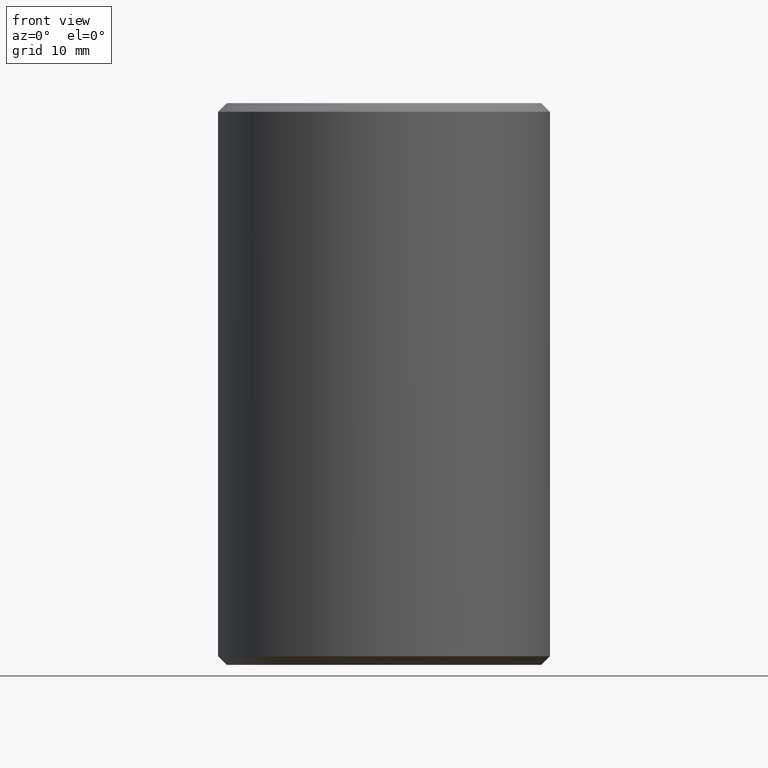
[diagram: clean part render]
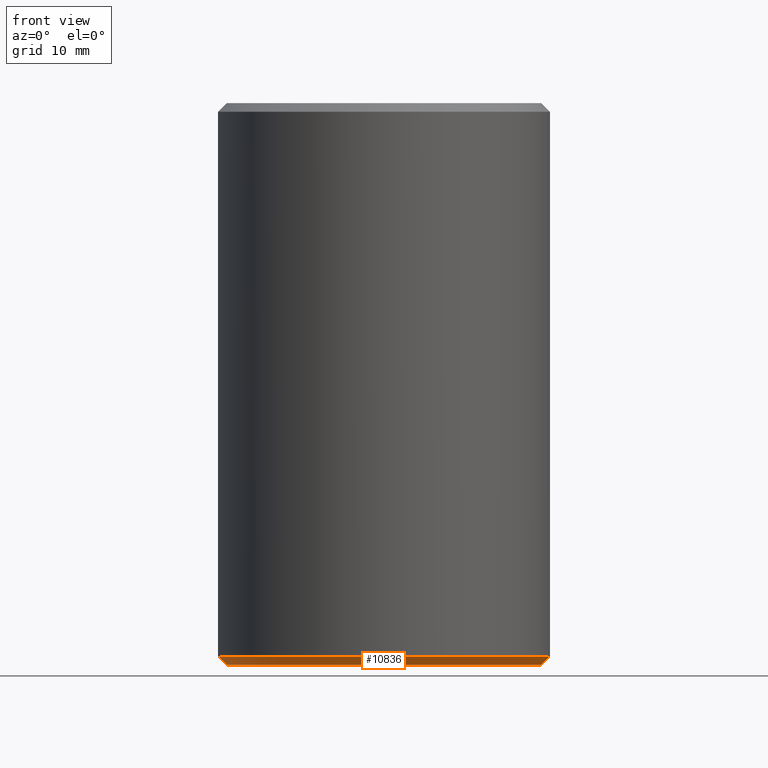
[diagram: same view with one face highlighted and labeled with its STEP entity id]
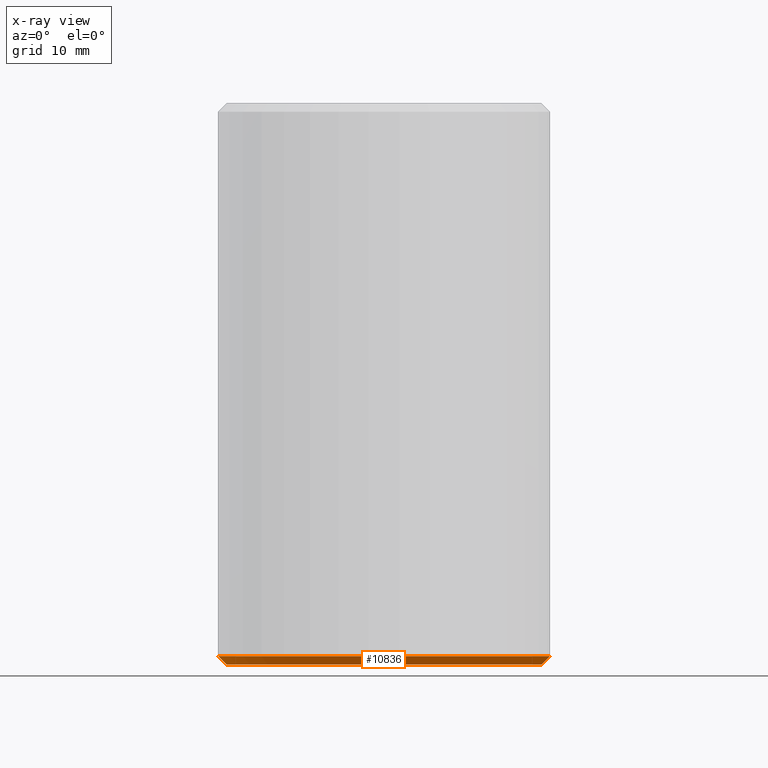
[diagram: x-ray of the same camera — body ghosted, the highlighted face saturated]
A machine part, front view. The second image highlights one B-rep face of the part: STEP entity #10836.
The next image is the same camera in x-ray: the body ghosted, the highlighted face saturated — about 0% of this face is hidden behind the body in this view.
In plain terms, the highlighted conical surface has half-angle 45 deg.
Its self-contained STEP definition (entity closure, byte-faithful):
#518 = EDGE_CURVE ( 'NONE', #8405, #8406, #3964, .T. ) ;
#564 = EDGE_CURVE ( 'NONE', #8031, #9399, #6859, .T. ) ;
#791 = ORIENTED_EDGE ( 'NONE', *, *, #9038, .F. ) ;
#935 = CARTESIAN_POINT ( 'NONE',  ( -19.19999999999999900, 0.0000000000000000000, -31.49999999999998600 ) ) ;
#1157 = EDGE_LOOP ( 'NONE', ( #10821, #3056, #2678, #791 ) ) ;
#1278 = CARTESIAN_POINT ( 'NONE',  ( 0.0000000000000000000, 0.0000000000000000000, -31.49999999999998600 ) ) ;
#1972 = CARTESIAN_POINT ( 'NONE',  ( 18.19999999999997400, 0.0000000000000000000, -32.50000000000000000 ) ) ;
#2461 = VECTOR ( 'NONE', #9692, 1000.000000000000000 ) ;
#2495 = CIRCLE ( 'NONE', #6560, 19.19999999999999900 ) ;
#2678 = ORIENTED_EDGE ( 'NONE', *, *, #518, .T. ) ;
#3056 = ORIENTED_EDGE ( 'NONE', *, *, #7361, .F. ) ;
#3964 = LINE ( 'NONE', #9062, #2461 ) ;
#4240 = CONICAL_SURFACE ( 'NONE', #6650, 19.19999999999999900, 0.7853981633974533900 ) ;
#5330 = CARTESIAN_POINT ( 'NONE',  ( -18.19999999999997400, 2.290089514405548900E-015, -32.50000000000000000 ) ) ;
#5698 = DIRECTION ( 'NONE',  ( 1.000000000000000000, 0.0000000000000000000, 0.0000000000000000000 ) ) ;
#5710 = CARTESIAN_POINT ( 'NONE',  ( 0.0000000000000000000, 0.0000000000000000000, -32.50000000000000000 ) ) ;
#5946 = DIRECTION ( 'NONE',  ( -0.0000000000000000000, -0.0000000000000000000, 1.000000000000000000 ) ) ;
#6405 = CARTESIAN_POINT ( 'NONE',  ( 19.19999999999999900, 2.351321854362917700E-015, -31.49999999999998600 ) ) ;
#6487 = DIRECTION ( 'NONE',  ( -0.0000000000000000000, -0.0000000000000000000, -1.000000000000000000 ) ) ;
#6526 = DIRECTION ( 'NONE',  ( 1.000000000000000000, 0.0000000000000000000, 0.0000000000000000000 ) ) ;
#6560 = AXIS2_PLACEMENT_3D ( 'NONE', #1278, #9260, #5698 ) ;
#6650 = AXIS2_PLACEMENT_3D ( 'NONE', #6909, #5946, #11243 ) ;
#6859 = LINE ( 'NONE', #10649, #7297 ) ;
#6909 = CARTESIAN_POINT ( 'NONE',  ( 0.0000000000000000000, 0.0000000000000000000, -31.49999999999998600 ) ) ;
#7297 = VECTOR ( 'NONE', #10609, 1000.000000000000000 ) ;
#7361 = EDGE_CURVE ( 'NONE', #8405, #8031, #10647, .T. ) ;
#8031 = VERTEX_POINT ( 'NONE', #5330 ) ;
#8133 = FACE_OUTER_BOUND ( 'NONE', #1157, .T. ) ;
#8405 = VERTEX_POINT ( 'NONE', #1972 ) ;
#8406 = VERTEX_POINT ( 'NONE', #6405 ) ;
#9038 = EDGE_CURVE ( 'NONE', #9399, #8406, #2495, .T. ) ;
#9062 = CARTESIAN_POINT ( 'NONE',  ( 19.19999999999999900, 0.0000000000000000000, -31.49999999999998600 ) ) ;
#9260 = DIRECTION ( 'NONE',  ( -0.0000000000000000000, -0.0000000000000000000, 1.000000000000000000 ) ) ;
#9399 = VERTEX_POINT ( 'NONE', #935 ) ;
#9692 = DIRECTION ( 'NONE',  ( 0.7071067811865512400, 0.0000000000000000000, 0.7071067811865439100 ) ) ;
#10609 = DIRECTION ( 'NONE',  ( -0.7071067811865512400, 8.659560562354978500E-017, 0.7071067811865439100 ) ) ;
#10647 = CIRCLE ( 'NONE', #10994, 18.19999999999997400 ) ;
#10649 = CARTESIAN_POINT ( 'NONE',  ( -19.19999999999999900, 2.351321854362917700E-015, -31.49999999999998600 ) ) ;
#10821 = ORIENTED_EDGE ( 'NONE', *, *, #564, .F. ) ;
#10836 = ADVANCED_FACE ( 'NONE', ( #8133 ), #4240, .T. ) ;
#10994 = AXIS2_PLACEMENT_3D ( 'NONE', #5710, #6487, #6526 ) ;
#11243 = DIRECTION ( 'NONE',  ( 1.000000000000000000, 0.0000000000000000000, 0.0000000000000000000 ) ) ;